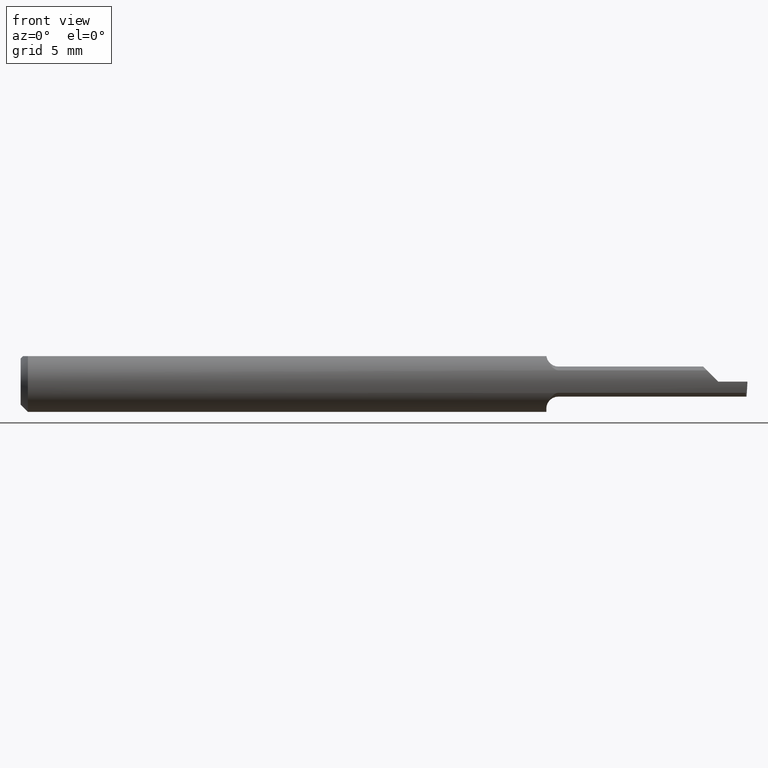
[diagram: clean part render]
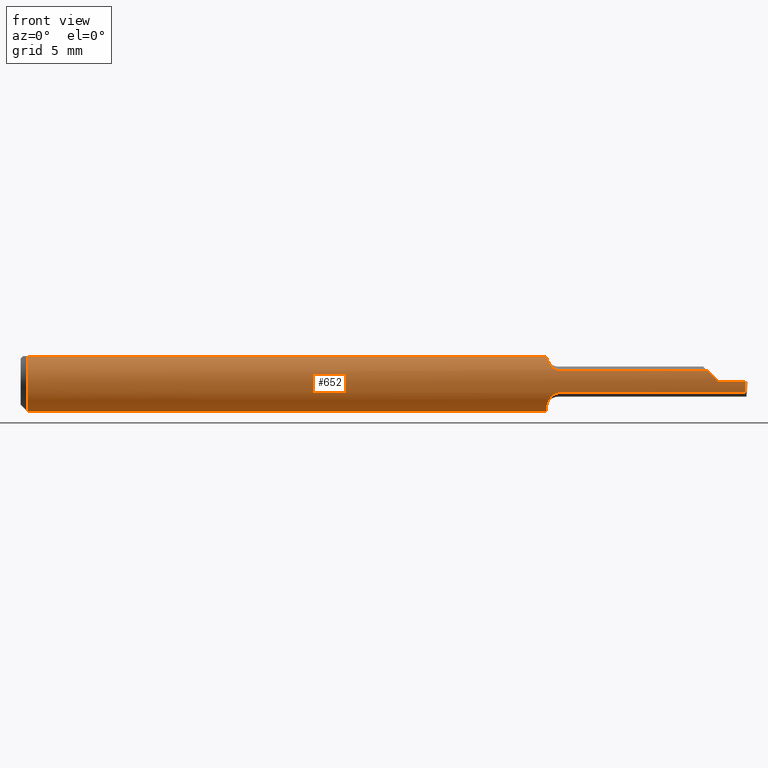
[diagram: same view with one face highlighted and labeled with its STEP entity id]
A machine part, front view. The second image highlights one B-rep face of the part: STEP entity #652.
In plain terms, the highlighted cylindrical surface (edge-blend (fillet) strip) has radius 1.5875 mm, axis along (-1, -0, -0).
Its self-contained STEP definition (entity closure, byte-faithful):
#5 = VERTEX_POINT ( 'NONE', #678 ) ;
#10 = ORIENTED_EDGE ( 'NONE', *, *, #285, .F. ) ;
#11 = DIRECTION ( 'NONE',  ( -1.000000000000000000, -0.000000000000000000, -0.000000000000000000 ) ) ;
#12 = DIRECTION ( 'NONE',  ( 0.000000000000000000, 0.000000000000000000, -1.000000000000000000 ) ) ;
#16 = FACE_OUTER_BOUND ( 'NONE', #65, .T. ) ;
#18 = EDGE_CURVE ( 'NONE', #538, #423, #701, .T. ) ;
#19 = DIRECTION ( 'NONE',  ( 0.02616100201822768243, -0.0009135623211514326287, 0.9996573249755575929 ) ) ;
#20 = CARTESIAN_POINT ( 'NONE',  ( 1.496892051515234412, -0.06249999999999996531, -4.074989739627355278E-18 ) ) ;
#21 = ORIENTED_EDGE ( 'NONE', *, *, #669, .F. ) ;
#22 = CARTESIAN_POINT ( 'NONE',  ( 1.084999999999999964, -0.02902000000000000066, -0.05535421935137375266 ) ) ;
#26 = CARTESIAN_POINT ( 'NONE',  ( 1.091038272854087943, -0.05007310510346346666, 0.03753991800363104536 ) ) ;
#28 = VERTEX_POINT ( 'NONE', #234 ) ;
#29 = DIRECTION ( 'NONE',  ( 0.000000000000000000, 0.000000000000000000, 1.000000000000000000 ) ) ;
#46 = LINE ( 'NONE', #713, #560 ) ;
#52 = B_SPLINE_CURVE_WITH_KNOTS ( 'NONE', 3,
 ( #642, #263, #476, #427 ),
 .UNSPECIFIED., .F., .F.,
 ( 4, 4 ),
 ( 3.663786157375969069E-07, 0.0001117245180919403103 ),
 .UNSPECIFIED. ) ;
#58 = ORIENTED_EDGE ( 'NONE', *, *, #59, .T. ) ;
#59 = EDGE_CURVE ( 'NONE', #28, #92, #649, .T. ) ;
#61 = CARTESIAN_POINT ( 'NONE',  ( 1.440000000000000169, -0.06250000000000000000, 7.469896857675718968E-18 ) ) ;
#63 = CARTESIAN_POINT ( 'NONE',  ( 1.085730677800976984, -0.03749999999999999861, 0.05000000000000000278 ) ) ;
#65 = EDGE_LOOP ( 'NONE', ( #58, #525, #149, #112, #444, #257, #535, #236, #21, #640, #550, #335, #10, #485, #133 ) ) ;
#69 = CARTESIAN_POINT ( 'NONE',  ( 1.089533395136242255, -0.04798856493085171954, 0.04019628732337204163 ) ) ;
#80 = EDGE_CURVE ( 'NONE', #475, #477, #377, .T. ) ;
#83 = CARTESIAN_POINT ( 'NONE',  ( 1.085730677800976984, -0.03749999999999999167, -0.05000000000000000278 ) ) ;
#89 = VERTEX_POINT ( 'NONE', #20 ) ;
#92 = VERTEX_POINT ( 'NONE', #242 ) ;
#104 = VECTOR ( 'NONE', #586, 39.37007874015748143 ) ;
#111 = CARTESIAN_POINT ( 'NONE',  ( 1.084999999999999964, -0.03199811029573849247, -0.05379291541113154218 ) ) ;
#112 = ORIENTED_EDGE ( 'NONE', *, *, #336, .T. ) ;
#124 = EDGE_CURVE ( 'NONE', #634, #5, #413, .T. ) ;
#126 = CARTESIAN_POINT ( 'NONE',  ( 0.01499999999999999944, 0.000000000000000000, 0.000000000000000000 ) ) ;
#127 = CARTESIAN_POINT ( 'NONE',  ( 1.097133919495981047, -0.05512334192814497685, -0.02956107256455829321 ) ) ;
#132 = EDGE_CURVE ( 'NONE', #28, #538, #201, .T. ) ;
#133 = ORIENTED_EDGE ( 'NONE', *, *, #132, .F. ) ;
#134 = CARTESIAN_POINT ( 'NONE',  ( 1.102745188404311349, -0.05730285598938307523, 0.02507717503036208453 ) ) ;
#139 = VERTEX_POINT ( 'NONE', #211 ) ;
#148 = B_SPLINE_CURVE_WITH_KNOTS ( 'NONE', 3,
 ( #494, #282, #111, #454 ),
 .UNSPECIFIED., .F., .F.,
 ( 4, 4 ),
 ( 0.001139280036252702339, 0.001394915048278309779 ),
 .UNSPECIFIED. ) ;
#149 = ORIENTED_EDGE ( 'NONE', *, *, #711, .T. ) ;
#177 = VERTEX_POINT ( 'NONE', #700 ) ;
#178 = CIRCLE ( 'NONE', #527, 0.06250000000000000000 ) ;
#180 = CARTESIAN_POINT ( 'NONE',  ( 1.086822973508685175, -0.04339095032599648433, -0.04558178725550264543 ) ) ;
#182 = DIRECTION ( 'NONE',  ( 1.000000000000000000, 0.000000000000000000, 0.000000000000000000 ) ) ;
#183 = CARTESIAN_POINT ( 'NONE',  ( 1.495584001414323128, -0.06245432188394240552, -0.04998286624877785328 ) ) ;
#184 = CARTESIAN_POINT ( 'NONE',  ( 1.097125360129863392, -0.05512021181523645702, 0.02956762184361229340 ) ) ;
#190 = EDGE_CURVE ( 'NONE', #279, #230, #178, .T. ) ;
#192 = CIRCLE ( 'NONE', #367, 0.06250000000000000000 ) ;
#193 = DIRECTION ( 'NONE',  ( -1.000000000000000000, -0.000000000000000000, -0.000000000000000000 ) ) ;
#201 = LINE ( 'NONE', #597, #459 ) ;
#204 = CARTESIAN_POINT ( 'NONE',  ( 2.324973294346407873E-32, -0.06250000000000000000, 1.867474214418933224E-16 ) ) ;
#211 = CARTESIAN_POINT ( 'NONE',  ( 1.416763614738949295, -0.05802000000000001600, 0.02323638526105122060 ) ) ;
#217 = CARTESIAN_POINT ( 'NONE',  ( 1.424175658816638546, -0.06098844384283146070, 0.01582434118336195975 ) ) ;
#230 = VERTEX_POINT ( 'NONE', #692 ) ;
#233 = CARTESIAN_POINT ( 'NONE',  ( 0.000000000000000000, -0.03391164991562636150, 0.05249999999999998418 ) ) ;
#234 = CARTESIAN_POINT ( 'NONE',  ( 1.496439659513480569, -0.05802000000000000213, -0.02323638526105124835 ) ) ;
#236 = ORIENTED_EDGE ( 'NONE', *, *, #552, .F. ) ;
#239 = DIRECTION ( 'NONE',  ( 0.000000000000000000, 0.000000000000000000, 1.000000000000000000 ) ) ;
#240 = CARTESIAN_POINT ( 'NONE',  ( 1.087141915052869612, -0.04317098555031172180, 0.04533111387689952448 ) ) ;
#241 = CARTESIAN_POINT ( 'NONE',  ( 0.01499999999999999944, -0.03391164991562636150, 0.05249999999999998418 ) ) ;
#242 = CARTESIAN_POINT ( 'NONE',  ( 1.496890555848597870, -0.06249997390100388295, -5.711719386470728930E-05 ) ) ;
#246 = CARTESIAN_POINT ( 'NONE',  ( 0.000000000000000000, 0.000000000000000000, 0.000000000000000000 ) ) ;
#257 = ORIENTED_EDGE ( 'NONE', *, *, #80, .F. ) ;
#263 = CARTESIAN_POINT ( 'NONE',  ( 1.085349223843382394, -0.03514686346408685269, 0.05170213086808623376 ) ) ;
#264 = EDGE_CURVE ( 'NONE', #177, #475, #52, .T. ) ;
#279 = VERTEX_POINT ( 'NONE', #705 ) ;
#282 = CARTESIAN_POINT ( 'NONE',  ( 1.085240408106322274, -0.03485588595911403437, -0.05198308553066447596 ) ) ;
#285 = EDGE_CURVE ( 'NONE', #423, #634, #148, .T. ) ;
#289 = DIRECTION ( 'NONE',  ( 1.000000000000000000, 0.000000000000000000, 0.000000000000000000 ) ) ;
#290 = CARTESIAN_POINT ( 'NONE',  ( 1.094858330071591945, -0.05365673730107053951, 0.03221049271007426357 ) ) ;
#291 = VECTOR ( 'NONE', #182, 39.37007874015748143 ) ;
#294 = CARTESIAN_POINT ( 'NONE',  ( 1.496890555848597870, -0.06249997390100388295, -5.711719386470728930E-05 ) ) ;
#310 = DIRECTION ( 'NONE',  ( -1.000000000000000000, -0.000000000000000000, -0.000000000000000000 ) ) ;
#335 = ORIENTED_EDGE ( 'NONE', *, *, #124, .F. ) ;
#336 = EDGE_CURVE ( 'NONE', #670, #139, #472, .T. ) ;
#342 = VECTOR ( 'NONE', #19, 39.37007874015748854 ) ;
#351 = DIRECTION ( 'NONE',  ( -1.000000000000000000, -0.000000000000000000, -0.000000000000000000 ) ) ;
#361 = CARTESIAN_POINT ( 'NONE',  ( 1.496682112777580453, -0.06249269490856873555, -0.008022088972760511166 ) ) ;
#364 = DIRECTION ( 'NONE',  ( 1.000000000000000000, 0.000000000000000000, 0.000000000000000000 ) ) ;
#367 = AXIS2_PLACEMENT_3D ( 'NONE', #126, #351, #568 ) ;
#377 = B_SPLINE_CURVE_WITH_KNOTS ( 'NONE', 3,
 ( #581, #468, #240, #69, #26, #290, #184, #134, #628, #690 ),
 .UNSPECIFIED., .F., .F.,
 ( 4, 2, 2, 2, 4 ),
 ( 0.0001117245180919403103, 0.0003949083380089213292, 0.0006780921579259024294, 0.0009612759778428834213, 0.001244459797759864522 ),
 .UNSPECIFIED. ) ;
#391 = CARTESIAN_POINT ( 'NONE',  ( 1.416763614738949295, -0.05802000000000001600, 0.02323638526105122060 ) ) ;
#405 = CARTESIAN_POINT ( 'NONE',  ( 1.496529988805222811, -0.06098123568212963225, -0.01584233957163198175 ) ) ;
#413 = CIRCLE ( 'NONE', #662, 0.06250000000000000000 ) ;
#416 = CARTESIAN_POINT ( 'NONE',  ( 1.106199873549930768, -0.05802000000000000907, -0.02323638526105123100 ) ) ;
#420 = CARTESIAN_POINT ( 'NONE',  ( 1.084999999999999964, 0.000000000000000000, 0.000000000000000000 ) ) ;
#423 = VERTEX_POINT ( 'NONE', #601 ) ;
#427 = CARTESIAN_POINT ( 'NONE',  ( 1.085730677800976984, -0.03749999999999999861, 0.05000000000000000278 ) ) ;
#444 = ORIENTED_EDGE ( 'NONE', *, *, #458, .F. ) ;
#452 = VERTEX_POINT ( 'NONE', #241 ) ;
#454 = CARTESIAN_POINT ( 'NONE',  ( 1.084999999999999964, -0.02902000000000000066, -0.05535421935137375266 ) ) ;
#456 = LINE ( 'NONE', #183, #342 ) ;
#458 = EDGE_CURVE ( 'NONE', #477, #139, #460, .T. ) ;
#459 = VECTOR ( 'NONE', #545, 39.37007874015748143 ) ;
#460 = LINE ( 'NONE', #622, #291 ) ;
#462 = CARTESIAN_POINT ( 'NONE',  ( 1.110000000000000098, -0.05801999999999999519, -0.02323638526105125182 ) ) ;
#468 = CARTESIAN_POINT ( 'NONE',  ( 1.086276458122897415, -0.04044349299612769177, 0.04779238025290422770 ) ) ;
#472 =( BOUNDED_CURVE ( )  B_SPLINE_CURVE ( 3, ( #61, #498, #217, #391 ),
 .UNSPECIFIED., .F., .T. ) 
 B_SPLINE_CURVE_WITH_KNOTS ( ( 4, 4 ),
 ( 4.712388980384689674, 5.093317038361561799 ),
 .UNSPECIFIED. ) 
 CURVE ( )  GEOMETRIC_REPRESENTATION_ITEM ( )  RATIONAL_B_SPLINE_CURVE ( ( 1.000000000000000000, 0.9879443289296153674, 0.9879443289296153674, 1.000000000000000000 ) ) 
 REPRESENTATION_ITEM ( '' )  );
#475 = VERTEX_POINT ( 'NONE', #63 ) ;
#476 = CARTESIAN_POINT ( 'NONE',  ( 1.085516057201432627, -0.03634251189313671832, 0.05086811608014746300 ) ) ;
#477 = VERTEX_POINT ( 'NONE', #625 ) ;
#485 = ORIENTED_EDGE ( 'NONE', *, *, #18, .F. ) ;
#489 = CARTESIAN_POINT ( 'NONE',  ( 0.01499999999999999944, 0.000000000000000000, 0.000000000000000000 ) ) ;
#494 = CARTESIAN_POINT ( 'NONE',  ( 1.085730677800976984, -0.03749999999999999167, -0.05000000000000000278 ) ) ;
#498 = CARTESIAN_POINT ( 'NONE',  ( 1.432015636765674671, -0.06250000000000001388, 0.007984363234325598385 ) ) ;
#515 = CARTESIAN_POINT ( 'NONE',  ( 1.094857446812235402, -0.05365459147834113207, -0.03221283735729426473 ) ) ;
#520 = CARTESIAN_POINT ( 'NONE',  ( 1.440000000000000169, -0.06250000000000000000, 7.469896857675718968E-18 ) ) ;
#525 = ORIENTED_EDGE ( 'NONE', *, *, #565, .T. ) ;
#527 = AXIS2_PLACEMENT_3D ( 'NONE', #489, #310, #29 ) ;
#535 = ORIENTED_EDGE ( 'NONE', *, *, #264, .F. ) ;
#538 = VERTEX_POINT ( 'NONE', #614 ) ;
#543 = EDGE_CURVE ( 'NONE', #5, #279, #46, .T. ) ;
#545 = DIRECTION ( 'NONE',  ( -1.000000000000000000, -0.000000000000000000, -0.000000000000000000 ) ) ;
#550 = ORIENTED_EDGE ( 'NONE', *, *, #543, .F. ) ;
#552 = EDGE_CURVE ( 'NONE', #452, #177, #573, .T. ) ;
#560 = VECTOR ( 'NONE', #11, 39.37007874015748143 ) ;
#562 = VECTOR ( 'NONE', #289, 39.37007874015748143 ) ;
#563 = CYLINDRICAL_SURFACE ( 'NONE', #657, 0.06250000000000000000 ) ;
#565 = EDGE_CURVE ( 'NONE', #92, #89, #456, .T. ) ;
#568 = DIRECTION ( 'NONE',  ( 0.000000000000000000, 0.000000000000000000, 1.000000000000000000 ) ) ;
#569 = CARTESIAN_POINT ( 'NONE',  ( 1.089146460857340459, -0.04830100695595845872, -0.04017699635729575502 ) ) ;
#573 = LINE ( 'NONE', #233, #562 ) ;
#581 = CARTESIAN_POINT ( 'NONE',  ( 1.085730677800976984, -0.03749999999999999861, 0.05000000000000000278 ) ) ;
#586 = DIRECTION ( 'NONE',  ( -1.000000000000000000, -0.000000000000000000, -0.000000000000000000 ) ) ;
#592 = LINE ( 'NONE', #204, #104 ) ;
#597 = CARTESIAN_POINT ( 'NONE',  ( 1.282000000000000250, -0.05802000000000000213, -0.02323638526105124835 ) ) ;
#601 = CARTESIAN_POINT ( 'NONE',  ( 1.085730677800976984, -0.03749999999999999167, -0.05000000000000000278 ) ) ;
#614 = CARTESIAN_POINT ( 'NONE',  ( 1.110000000000000098, -0.05801999999999999519, -0.02323638526105125182 ) ) ;
#622 = CARTESIAN_POINT ( 'NONE',  ( 1.282000000000000250, -0.05802000000000000213, 0.02323638526105124835 ) ) ;
#625 = CARTESIAN_POINT ( 'NONE',  ( 1.110000000000000098, -0.05802000000000001600, 0.02323638526105123100 ) ) ;
#628 = CARTESIAN_POINT ( 'NONE',  ( 1.106210029592591848, -0.05802000000002827118, 0.02323638526098085674 ) ) ;
#631 = CARTESIAN_POINT ( 'NONE',  ( 1.496439659513480569, -0.05802000000000000213, -0.02323638526105124835 ) ) ;
#634 = VERTEX_POINT ( 'NONE', #22 ) ;
#639 = CARTESIAN_POINT ( 'NONE',  ( 1.102733921199933187, -0.05729867410502242214, -0.02508588811066296206 ) ) ;
#640 = ORIENTED_EDGE ( 'NONE', *, *, #190, .F. ) ;
#642 = CARTESIAN_POINT ( 'NONE',  ( 1.085229202404327520, -0.03391164991478706064, 0.05250000000000000500 ) ) ;
#649 =( BOUNDED_CURVE ( )  B_SPLINE_CURVE ( 3, ( #631, #405, #361, #294 ),
 .UNSPECIFIED., .F., .T. ) 
 B_SPLINE_CURVE_WITH_KNOTS ( ( 4, 4 ),
 ( 0.2627802246738042968, 0.6427944074216366266 ),
 .UNSPECIFIED. ) 
 CURVE ( )  GEOMETRIC_REPRESENTATION_ITEM ( )  RATIONAL_B_SPLINE_CURVE ( ( 1.000000000000000000, 0.9880019305490248538, 0.9880019305490248538, 1.000000000000000000 ) ) 
 REPRESENTATION_ITEM ( '' )  );
#652 = ADVANCED_FACE ( 'NONE', ( #16 ), #563, .T. ) ;
#657 = AXIS2_PLACEMENT_3D ( 'NONE', #246, #193, #239 ) ;
#662 = AXIS2_PLACEMENT_3D ( 'NONE', #420, #364, #12 ) ;
#669 = EDGE_CURVE ( 'NONE', #230, #452, #192, .T. ) ;
#670 = VERTEX_POINT ( 'NONE', #520 ) ;
#678 = CARTESIAN_POINT ( 'NONE',  ( 1.084999999999999964, 0.03391164991562636150, 0.05250000000000000500 ) ) ;
#690 = CARTESIAN_POINT ( 'NONE',  ( 1.110000000000000098, -0.05802000000000001600, 0.02323638526105123100 ) ) ;
#692 = CARTESIAN_POINT ( 'NONE',  ( 0.01499999999999999944, 0.000000000000000000, -0.06250000000000000000 ) ) ;
#700 = CARTESIAN_POINT ( 'NONE',  ( 1.085229202404327520, -0.03391164991478706064, 0.05250000000000000500 ) ) ;
#701 = B_SPLINE_CURVE_WITH_KNOTS ( 'NONE', 3,
 ( #462, #416, #639, #127, #515, #569, #180, #83 ),
 .UNSPECIFIED., .F., .F.,
 ( 4, 2, 2, 4 ),
 ( 1.966728711705933212E-07, 0.0002849675137165535738, 0.0005697383545619365318, 0.001139280036252702339 ),
 .UNSPECIFIED. ) ;
#705 = CARTESIAN_POINT ( 'NONE',  ( 0.01499999999999999771, 0.03391164991562633374, 0.05250000000000000500 ) ) ;
#711 = EDGE_CURVE ( 'NONE', #89, #670, #592, .T. ) ;
#713 = CARTESIAN_POINT ( 'NONE',  ( 0.000000000000000000, 0.03391164991562636150, 0.05249999999999998418 ) ) ;